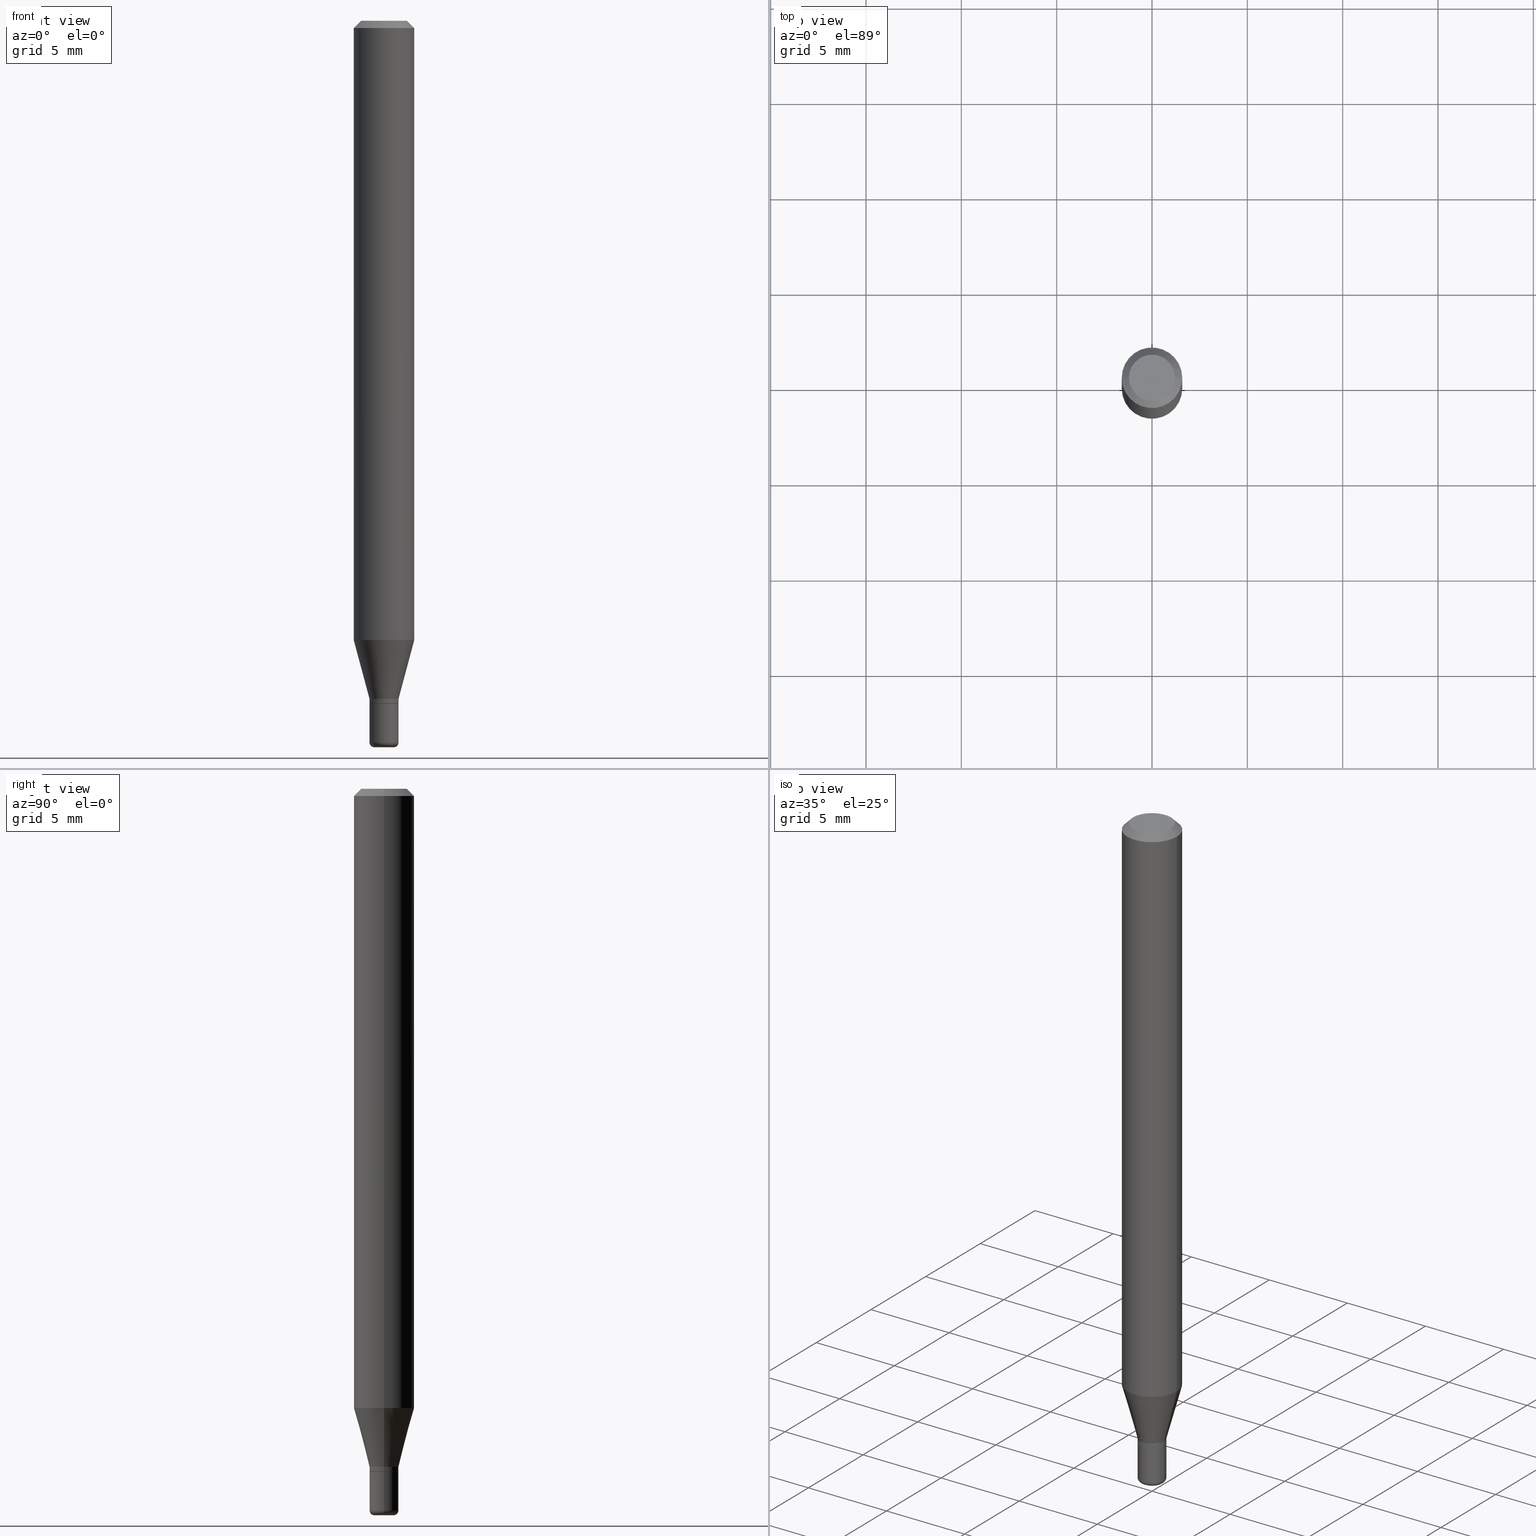
[diagram: canonical four-view strip — front | top / right | iso, engineering-drawing reading convention]
A machine part, canonical four-view strip (front | top / right | iso — engineering-drawing reading convention). The complete STEP part file that produces these views, byte-faithful:
ISO-10303-21;
HEADER;
FILE_DESCRIPTION (( 'STEP AP203' ),
    '1' );
FILE_NAME ('09160.STEP',
    '2024-02-29T22:48:57',
    ( '' ),
    ( '' ),
    'SwSTEP 2.0',
    'SolidWorks 2023',
    '' );
FILE_SCHEMA (( 'CONFIG_CONTROL_DESIGN' ));
ENDSEC;

DATA;
#1 = EDGE_LOOP ( 'NONE', ( #85, #330, #126, #214 ) ) ;
#2 = DIRECTION ( 'NONE',  ( 1.000000000000000000, -6.982962677686281699E-15, 0.000000000000000000 ) ) ;
#3 = DIRECTION ( 'NONE',  ( 1.000000000000000000, -6.982962677686282488E-15, 0.000000000000000000 ) ) ;
#4 = VERTEX_POINT ( 'NONE', #303 ) ;
#5 = VECTOR ( 'NONE', #306, 39.37007874015748143 ) ;
#6 = DIRECTION ( 'NONE',  ( -2.445468806185136877E-29, 3.491481338843145188E-15, 1.000000000000000000 ) ) ;
#7 = LOCAL_TIME ( 17, 48, 57.00000000000000000, #434 ) ;
#8 = FACE_OUTER_BOUND ( 'NONE', #161, .T. ) ;
#9 = ORIENTED_EDGE ( 'NONE', *, *, #195, .T. ) ;
#10 = ORIENTED_EDGE ( 'NONE', *, *, #149, .T. ) ;
#11 = EDGE_LOOP ( 'NONE', ( #32, #452, #176, #162 ) ) ;
#12 = CARTESIAN_POINT ( 'NONE',  ( 3.668203209277632395E-31, -5.237222008264614861E-17, -0.01499999999999970281 ) ) ;
#13 = ORIENTED_EDGE ( 'NONE', *, *, #179, .F. ) ;
#14 = CIRCLE ( 'NONE', #221, 0.04750000000000000749 ) ;
#15 = AXIS2_PLACEMENT_3D ( 'NONE', #436, #513, #155 ) ;
#16 = CARTESIAN_POINT ( 'NONE',  ( -0.02949999999999996722, -4.713378580719606355E-15, -1.409999999999999920 ) ) ;
#17 = VERTEX_POINT ( 'NONE', #340 ) ;
#18 = CARTESIAN_POINT ( 'NONE',  ( -0.02999999999999999542, -4.849485120594531264E-15, -1.409999999999999920 ) ) ;
#19 = EDGE_LOOP ( 'NONE', ( #238, #10, #237, #78 ) ) ;
#20 = CONICAL_SURFACE ( 'NONE', #319, 0.02949999999999996722, 0.7853981633975507526 ) ;
#21 = CIRCLE ( 'NONE', #329, 0.02000000000000000389 ) ;
#22 = CARTESIAN_POINT ( 'NONE',  ( 3.448111016721042669E-29, -4.922988687768835701E-15, -1.409999999999999920 ) ) ;
#23 = EDGE_CURVE ( 'NONE', #372, #53, #14, .T. ) ;
#24 = DIRECTION ( 'NONE',  ( -2.445468806185136877E-29, 3.491481338843145188E-15, 1.000000000000000000 ) ) ;
#25 = PRODUCT ( '09160', '09160', '', ( #84 ) ) ;
#26 = PERSON_AND_ORGANIZATION_ROLE ( 'creator' ) ;
#27 = CARTESIAN_POINT ( 'NONE',  ( 0.02999999999999999889, -5.132477568099423229E-15, -1.409999999999999920 ) ) ;
#28 = EDGE_CURVE ( 'NONE', #53, #372, #118, .T. ) ;
#29 = APPROVAL_ROLE ( '' ) ;
#30 = CIRCLE ( 'NONE', #105, 0.02999999999999997807 ) ;
#31 = CIRCLE ( 'NONE', #320, 0.02999999999999997113 ) ;
#32 = ORIENTED_EDGE ( 'NONE', *, *, #437, .T. ) ;
#33 = CIRCLE ( 'NONE', #278, 0.02999999999999997807 ) ;
#34 = ORIENTED_EDGE ( 'NONE', *, *, #407, .T. ) ;
#35 = EDGE_CURVE ( 'NONE', #476, #4, #448, .T. ) ;
#36 = CARTESIAN_POINT ( 'NONE',  ( -0.02949999999999996722, -4.710729353545495154E-15, -1.409999999999999920 ) ) ;
#37 = ORIENTED_EDGE ( 'NONE', *, *, #47, .F. ) ;
#38 = EDGE_LOOP ( 'NONE', ( #92, #333, #482, #444 ) ) ;
#39 = ADVANCED_FACE ( 'NONE', ( #337 ), #125, .F. ) ;
#40 = CARTESIAN_POINT ( 'NONE',  ( 0.000000000000000000, 0.000000000000000000, 0.000000000000000000 ) ) ;
#41 = DIRECTION ( 'NONE',  ( 1.000000000000000000, -6.982962677686258822E-15, 0.000000000000000000 ) ) ;
#42 = EDGE_LOOP ( 'NONE', ( #200, #366, #260, #416 ) ) ;
#43 = DIRECTION ( 'NONE',  ( -1.000000000000000000, 6.982962677686265922E-15, -4.876176775795935793E-29 ) ) ;
#44 = PERSON_AND_ORGANIZATION ( #103, #249 ) ;
#45 = ORIENTED_EDGE ( 'NONE', *, *, #98, .T. ) ;
#46 = LINE ( 'NONE', #51, #89 ) ;
#47 = EDGE_CURVE ( 'NONE', #406, #167, #252, .T. ) ;
#48 = AXIS2_PLACEMENT_3D ( 'NONE', #101, #462, #262 ) ;
#49 = CALENDAR_DATE ( 2024, 29, 2 ) ;
#50 = AXIS2_PLACEMENT_3D ( 'NONE', #203, #414, #441 ) ;
#51 = CARTESIAN_POINT ( 'NONE',  ( 0.02999999999999997460, -2.094888803305878238E-16, 1.462853032738779477E-30 ) ) ;
#52 = DIRECTION ( 'NONE',  ( 1.000000000000000000, -6.982962677686268288E-15, 0.000000000000000000 ) ) ;
#53 = VERTEX_POINT ( 'NONE', #379 ) ;
#54 = ORIENTED_EDGE ( 'NONE', *, *, #130, .T. ) ;
#55 = DATE_TIME_ROLE ( 'classification_date' ) ;
#56 = DIRECTION ( 'NONE',  ( 1.000000000000000000, -6.982962677686265922E-15, 4.876176775795935793E-29 ) ) ;
#57 = ADVANCED_FACE ( 'NONE', ( #59 ), #284, .T. ) ;
#58 = AXIS2_PLACEMENT_3D ( 'NONE', #65, #190, #100 ) ;
#59 = FACE_OUTER_BOUND ( 'NONE', #86, .T. ) ;
#60 = CARTESIAN_POINT ( 'NONE',  ( 0.02999999999999997113, -2.094888803305877992E-16, 1.462853032738779302E-30 ) ) ;
#61 = CARTESIAN_POINT ( 'NONE',  ( 0.000000000000000000, 0.000000000000000000, 0.000000000000000000 ) ) ;
#62 = VERTEX_POINT ( 'NONE', #344 ) ;
#63 = EDGE_CURVE ( 'NONE', #439, #283, #490, .T. ) ;
#64 = SHAPE_DEFINITION_REPRESENTATION ( #70, #276 ) ;
#65 = CARTESIAN_POINT ( 'NONE',  ( 3.448111016721042669E-29, -4.922988687768835701E-15, -1.409999999999999920 ) ) ;
#66 = AXIS2_PLACEMENT_3D ( 'NONE', #40, #514, #76 ) ;
#67 = AXIS2_PLACEMENT_3D ( 'NONE', #316, #504, #71 ) ;
#68 = FACE_OUTER_BOUND ( 'NONE', #288, .T. ) ;
#69 = PERSON_AND_ORGANIZATION ( #103, #249 ) ;
#70 = PRODUCT_DEFINITION_SHAPE ( 'NONE', 'NONE',  #79 ) ;
#71 = DIRECTION ( 'NONE',  ( 1.000000000000000000, -6.982962677686273021E-15, 0.000000000000000000 ) ) ;
#72 = DIRECTION ( 'NONE',  ( 1.000000000000000000, -6.982962677686273021E-15, 0.000000000000000000 ) ) ;
#73 = ADVANCED_FACE ( 'NONE', ( #346 ), #422, .T. ) ;
#74 = DIRECTION ( 'NONE',  ( -2.445468806185136597E-29, 3.491481338843145583E-15, 1.000000000000000000 ) ) ;
#75 = CALENDAR_DATE ( 2024, 29, 2 ) ;
#76 = DIRECTION ( 'NONE',  ( 1.000000000000000000, -6.982962677686266711E-15, 4.876176775795935793E-29 ) ) ;
#77 = VECTOR ( 'NONE', #24, 39.37007874015748143 ) ;
#78 = ORIENTED_EDGE ( 'NONE', *, *, #305, .F. ) ;
#79 = PRODUCT_DEFINITION ( 'UNKNOWN', '', #385, #324 ) ;
#80 = ORIENTED_EDGE ( 'NONE', *, *, #437, .F. ) ;
#81 = CIRCLE ( 'NONE', #363, 0.02999999999999997113 ) ;
#82 = EDGE_CURVE ( 'NONE', #17, #250, #30, .T. ) ;
#83 = ORIENTED_EDGE ( 'NONE', *, *, #233, .T. ) ;
#84 = MECHANICAL_CONTEXT ( 'NONE', #154, 'mechanical' ) ;
#85 = ORIENTED_EDGE ( 'NONE', *, *, #63, .F. ) ;
#86 = EDGE_LOOP ( 'NONE', ( #116, #54, #291, #475 ) ) ;
#87 = CLOSED_SHELL ( 'NONE', ( #294, #453, #317, #401, #73, #39 ) ) ;
#88 = APPLICATION_PROTOCOL_DEFINITION ( 'international standard', 'config_control_design', 1994, #154 ) ;
#89 = VECTOR ( 'NONE', #484, 39.37007874015748143 ) ;
#90 = CARTESIAN_POINT ( 'NONE',  ( -0.06250000000000000000, 4.440892098500626162E-16, -3.074334431409316114E-30 ) ) ;
#91 = CC_DESIGN_PERSON_AND_ORGANIZATION_ASSIGNMENT ( #189, #503, ( #396 ) ) ;
#92 = ORIENTED_EDGE ( 'NONE', *, *, #177, .T. ) ;
#93 = CARTESIAN_POINT ( 'NONE',  ( 3.446888282317950428E-29, -4.921242947099414198E-15, -1.409500000000000197 ) ) ;
#94 = CARTESIAN_POINT ( 'NONE',  ( -6.680649051745406845E-45, 9.538196290434862081E-31, 2.731847993664263218E-16 ) ) ;
#95 = VECTOR ( 'NONE', #343, 39.37007874015748854 ) ;
#96 = CIRCLE ( 'NONE', #438, 0.06250000000000000000 ) ;
#97 = ORIENTED_EDGE ( 'NONE', *, *, #130, .F. ) ;
#98 = EDGE_CURVE ( 'NONE', #250, #406, #133, .T. ) ;
#99 = DIRECTION ( 'NONE',  ( 0.7071067811865479058, -7.319954787623257623E-15, -0.7071067811865471286 ) ) ;
#100 = DIRECTION ( 'NONE',  ( 1.000000000000000000, -6.982962677686268288E-15, 0.000000000000000000 ) ) ;
#101 = CARTESIAN_POINT ( 'NONE',  ( -0.02000000000000000042, -5.060198647724267153E-15, -1.490000000000000213 ) ) ;
#102 = CALENDAR_DATE ( 2024, 29, 2 ) ;
#103 = PERSON ( 'UNSPECIFIED', 'UNSPECIFIED', 'UNSPECIFIED', ('UNSPECIFIED'), ('UNSPECIFIED'), ('UNSPECIFIED') ) ;
#104 = CARTESIAN_POINT ( 'NONE',  ( 3.423656328659191123E-29, -4.888073874380404052E-15, -1.400000000000000133 ) ) ;
#105 = AXIS2_PLACEMENT_3D ( 'NONE', #389, #124, #485 ) ;
#106 = CIRCLE ( 'NONE', #409, 0.02949999999999996722 ) ;
#107 = PERSON_AND_ORGANIZATION_ROLE ( 'design_supplier' ) ;
#108 = FACE_OUTER_BOUND ( 'NONE', #42, .T. ) ;
#109 = CARTESIAN_POINT ( 'NONE',  ( -0.02999999999999997460, 2.131628207280298753E-16, -1.475680527076470656E-30 ) ) ;
#110 = DATE_TIME_ROLE ( 'creation_date' ) ;
#111 = CARTESIAN_POINT ( 'NONE',  ( -0.02999999999999997113, 2.131628207280298507E-16, -1.475680527076470305E-30 ) ) ;
#112 = CIRCLE ( 'NONE', #430, 0.06250000000000000000 ) ;
#113 = CC_DESIGN_APPROVAL ( #114, ( #396 ) ) ;
#114 = APPROVAL ( #275, 'UNSPECIFIED' ) ;
#115 = ORIENTED_EDGE ( 'NONE', *, *, #274, .T. ) ;
#116 = ORIENTED_EDGE ( 'NONE', *, *, #28, .F. ) ;
#117 = APPROVAL_DATE_TIME ( #412, #314 ) ;
#118 = CIRCLE ( 'NONE', #212, 0.04750000000000000749 ) ;
#119 = PRODUCT_RELATED_PRODUCT_CATEGORY ( 'detail', '', ( #25 ) ) ;
#120 = CIRCLE ( 'NONE', #159, 0.02949999999999996722 ) ;
#121 = ORIENTED_EDGE ( 'NONE', *, *, #210, .T. ) ;
#122 = DIRECTION ( 'NONE',  ( 1.000000000000000000, 0.000000000000000000, 0.000000000000000000 ) ) ;
#123 = CARTESIAN_POINT ( 'NONE',  ( 3.448111016721042669E-29, -4.922988687768835701E-15, -1.409999999999999920 ) ) ;
#124 = DIRECTION ( 'NONE',  ( -2.445468806185136597E-29, 3.491481338843145583E-15, 1.000000000000000000 ) ) ;
#125 = PLANE ( 'NONE',  #383 ) ;
#126 = ORIENTED_EDGE ( 'NONE', *, *, #35, .T. ) ;
#127 = CARTESIAN_POINT ( 'NONE',  ( -0.02999999999999997807, -4.674911053652373807E-15, -1.400000000000000133 ) ) ;
#128 = DIRECTION ( 'NONE',  ( 0.7071067811866199593, -2.468850131083015945E-15, 0.7071067811864750752 ) ) ;
#129 = VECTOR ( 'NONE', #506, 39.37007874015748143 ) ;
#130 = EDGE_CURVE ( 'NONE', #53, #491, #296, .T. ) ;
#131 = ORIENTED_EDGE ( 'NONE', *, *, #282, .T. ) ;
#132 = LINE ( 'NONE', #450, #515 ) ;
#133 = LINE ( 'NONE', #127, #95 ) ;
#134 = ADVANCED_FACE ( 'NONE', ( #425 ), #20, .T. ) ;
#135 = DIRECTION ( 'NONE',  ( -1.000000000000000000, 6.982962677686266711E-15, 0.000000000000000000 ) ) ;
#136 = CARTESIAN_POINT ( 'NONE',  ( -6.680649051745406845E-45, 9.538196290434862081E-31, 2.731847993664263218E-16 ) ) ;
#137 = EDGE_CURVE ( 'NONE', #496, #349, #433, .T. ) ;
#138 = CARTESIAN_POINT ( 'NONE',  ( -0.04750000000000000749, 3.578768372314221353E-16, 2.731847993664239060E-16 ) ) ;
#139 = VECTOR ( 'NONE', #219, 39.37007874015748143 ) ;
#140 = EDGE_LOOP ( 'NONE', ( #254, #361 ) ) ;
#141 = DIRECTION ( 'NONE',  ( -2.445468806185136597E-29, 3.491481338843145583E-15, 1.000000000000000000 ) ) ;
#142 = DIRECTION ( 'NONE',  ( -2.445468806185136597E-29, 3.491481338843145583E-15, 1.000000000000000000 ) ) ;
#143 = DIRECTION ( 'NONE',  ( -2.445468806185136597E-29, 3.491481338843145583E-15, 1.000000000000000000 ) ) ;
#144 =( CONVERSION_BASED_UNIT ( 'INCH', #362 ) LENGTH_UNIT ( ) NAMED_UNIT ( #331 ) );
#145 = DIRECTION ( 'NONE',  ( -2.445468806185136597E-29, 3.491481338843145583E-15, 1.000000000000000000 ) ) ;
#146 = CARTESIAN_POINT ( 'NONE',  ( 3.127041379086440337E-29, -4.464586337497564496E-15, -1.278708348754011626 ) ) ;
#147 = VECTOR ( 'NONE', #6, 39.37007874015748143 ) ;
#148 = FACE_OUTER_BOUND ( 'NONE', #418, .T. ) ;
#149 = EDGE_CURVE ( 'NONE', #218, #347, #429, .T. ) ;
#150 = DIRECTION ( 'NONE',  ( -1.000000000000000000, 6.982962677686265922E-15, -4.876176775795935793E-29 ) ) ;
#151 = DIRECTION ( 'NONE',  ( 1.000000000000000000, -6.982962677686266711E-15, 4.876176775795935793E-29 ) ) ;
#152 = APPROVAL_STATUS ( 'not_yet_approved' ) ;
#153 = CARTESIAN_POINT ( 'NONE',  ( 3.643748521215853910E-29, -5.202307194876288105E-15, -1.490000000000000213 ) ) ;
#154 = APPLICATION_CONTEXT ( 'configuration controlled 3d designs of mechanical parts and assemblies' ) ;
#155 = DIRECTION ( 'NONE',  ( 1.000000000000000000, -6.982962677686265922E-15, 4.876176775795935793E-29 ) ) ;
#156 = ADVANCED_FACE ( 'NONE', ( #68 ), #280, .T. ) ;
#157 = FACE_OUTER_BOUND ( 'NONE', #327, .T. ) ;
#158 = VECTOR ( 'NONE', #99, 39.37007874015748143 ) ;
#159 = AXIS2_PLACEMENT_3D ( 'NONE', #399, #348, #312 ) ;
#160 = CARTESIAN_POINT ( 'NONE',  ( 3.448111016721042669E-29, -4.922988687768835701E-15, -1.409999999999999920 ) ) ;
#161 = EDGE_LOOP ( 'NONE', ( #440, #204, #13, #196 ) ) ;
#162 = ORIENTED_EDGE ( 'NONE', *, *, #35, .F. ) ;
#163 = AXIS2_PLACEMENT_3D ( 'NONE', #244, #371, #3 ) ;
#164 = ORIENTED_EDGE ( 'NONE', *, *, #229, .T. ) ;
#165 = CARTESIAN_POINT ( 'NONE',  ( -0.02999999999999994338, -4.849485120594531264E-15, -1.490000000000000213 ) ) ;
#166 = APPROVAL_ROLE ( '' ) ;
#167 = VERTEX_POINT ( 'NONE', #236 ) ;
#168 = ORIENTED_EDGE ( 'NONE', *, *, #411, .F. ) ;
#169 = FACE_OUTER_BOUND ( 'NONE', #456, .T. ) ;
#170 = DIRECTION ( 'NONE',  ( -2.438088387897960049E-29, 3.491481338843145188E-15, 1.000000000000000000 ) ) ;
#171 = APPROVAL_STATUS ( 'not_yet_approved' ) ;
#172 = ADVANCED_FACE ( 'NONE', ( #234 ), #198, .T. ) ;
#173 = CARTESIAN_POINT ( 'NONE',  ( 3.448111016721042669E-29, -4.922988687768835701E-15, -1.409999999999999920 ) ) ;
#174 = DIRECTION ( 'NONE',  ( 2.445468806185136597E-29, -3.491481338843145583E-15, -1.000000000000000000 ) ) ;
#175 = AXIS2_PLACEMENT_3D ( 'NONE', #427, #505, #495 ) ;
#176 = ORIENTED_EDGE ( 'NONE', *, *, #177, .F. ) ;
#177 = EDGE_CURVE ( 'NONE', #4, #283, #81, .T. ) ;
#178 = DIRECTION ( 'NONE',  ( -0.7071067811866199593, 7.493145998870616062E-15, 0.7071067811864750752 ) ) ;
#179 = EDGE_CURVE ( 'NONE', #491, #167, #465, .T. ) ;
#180 = ORIENTED_EDGE ( 'NONE', *, *, #274, .F. ) ;
#181 = EDGE_LOOP ( 'NONE', ( #97, #342, #83, #115 ) ) ;
#182 =( GEOMETRIC_REPRESENTATION_CONTEXT ( 3 ) GLOBAL_UNCERTAINTY_ASSIGNED_CONTEXT ( ( #451 ) ) GLOBAL_UNIT_ASSIGNED_CONTEXT ( ( #144, #353, #397 ) ) REPRESENTATION_CONTEXT ( 'NONE', 'WORKASPACE' ) );
#183 = CARTESIAN_POINT ( 'NONE',  ( 3.643748521215853910E-29, -5.202307194876288105E-15, -1.490000000000000213 ) ) ;
#184 = DIRECTION ( 'NONE',  ( 2.445468806185136597E-29, -3.491481338843145583E-15, -1.000000000000000000 ) ) ;
#185 = DIRECTION ( 'NONE',  ( 1.000000000000000000, -6.982962677686262766E-15, 0.000000000000000000 ) ) ;
#186 = FACE_OUTER_BOUND ( 'NONE', #332, .T. ) ;
#187 = CC_DESIGN_PERSON_AND_ORGANIZATION_ASSIGNMENT ( #367, #334, ( #79 ) ) ;
#188 = DIRECTION ( 'NONE',  ( 1.000000000000000000, -6.982962677686266711E-15, 0.000000000000000000 ) ) ;
#189 = PERSON_AND_ORGANIZATION ( #103, #249 ) ;
#190 = DIRECTION ( 'NONE',  ( -2.445468806185136597E-29, 3.491481338843145583E-15, 1.000000000000000000 ) ) ;
#191 = TOROIDAL_SURFACE ( 'NONE', #213, 0.02000000000000000042, 0.009999999999999946432 ) ;
#192 = CYLINDRICAL_SURFACE ( 'NONE', #309, 0.02999999999999997460 ) ;
#193 = DATE_AND_TIME ( #75, #194 ) ;
#194 = LOCAL_TIME ( 17, 48, 57.00000000000000000, #511 ) ;
#195 = EDGE_CURVE ( 'NONE', #4, #17, #46, .T. ) ;
#196 = ORIENTED_EDGE ( 'NONE', *, *, #407, .F. ) ;
#197 = CARTESIAN_POINT ( 'NONE',  ( 3.423656328659191123E-29, -4.888073874380404052E-15, -1.400000000000000133 ) ) ;
#198 = CONICAL_SURFACE ( 'NONE', #408, 0.02999999999999997807, 0.2617993877991498519 ) ;
#199 = AXIS2_PLACEMENT_3D ( 'NONE', #246, #338, #413 ) ;
#200 = ORIENTED_EDGE ( 'NONE', *, *, #98, .F. ) ;
#201 = CC_DESIGN_DATE_AND_TIME_ASSIGNMENT ( #428, #110, ( #79 ) ) ;
#202 = CARTESIAN_POINT ( 'NONE',  ( 3.643748521215853910E-29, -5.202307194876288105E-15, -1.490000000000000213 ) ) ;
#203 = CARTESIAN_POINT ( 'NONE',  ( 0.000000000000000000, 0.000000000000000000, 0.000000000000000000 ) ) ;
#204 = ORIENTED_EDGE ( 'NONE', *, *, #47, .T. ) ;
#205 = CARTESIAN_POINT ( 'NONE',  ( 0.000000000000000000, 0.000000000000000000, 0.000000000000000000 ) ) ;
#206 = CC_DESIGN_PERSON_AND_ORGANIZATION_ASSIGNMENT ( #304, #107, ( #385 ) ) ;
#207 = CARTESIAN_POINT ( 'NONE',  ( 3.582686580359766038E-29, -5.359686688179453325E-15, -1.500000000000000222 ) ) ;
#208 = DIRECTION ( 'NONE',  ( -2.445468806185136597E-29, 3.491481338843145583E-15, 1.000000000000000000 ) ) ;
#209 = PERSON_AND_ORGANIZATION ( #103, #249 ) ;
#210 = EDGE_CURVE ( 'NONE', #283, #4, #31, .T. ) ;
#211 = ORIENTED_EDGE ( 'NONE', *, *, #229, .F. ) ;
#212 = AXIS2_PLACEMENT_3D ( 'NONE', #94, #208, #449 ) ;
#213 = AXIS2_PLACEMENT_3D ( 'NONE', #183, #142, #460 ) ;
#214 = ORIENTED_EDGE ( 'NONE', *, *, #210, .F. ) ;
#215 = CC_DESIGN_SECURITY_CLASSIFICATION ( #396, ( #385 ) ) ;
#216 = ADVANCED_FACE ( 'NONE', ( #417 ), #510, .T. ) ;
#217 = CARTESIAN_POINT ( 'NONE',  ( -0.02999999999999997113, -4.708080126371384742E-15, -1.409500000000000197 ) ) ;
#218 = VERTEX_POINT ( 'NONE', #493 ) ;
#219 = DIRECTION ( 'NONE',  ( -2.445468806185136877E-29, 3.491481338843145188E-15, 1.000000000000000000 ) ) ;
#220 = CARTESIAN_POINT ( 'NONE',  ( 3.668203209277632395E-31, -5.237222008264614861E-17, -0.01499999999999970281 ) ) ;
#221 = AXIS2_PLACEMENT_3D ( 'NONE', #136, #258, #419 ) ;
#222 = VECTOR ( 'NONE', #502, 39.37007874015748143 ) ;
#223 = APPROVAL_PERSON_ORGANIZATION ( #289, #314, #166 ) ;
#224 = CARTESIAN_POINT ( 'NONE',  ( 3.668203209277704895E-29, -5.237222008264718177E-15, -1.500000000000000222 ) ) ;
#225 = CARTESIAN_POINT ( 'NONE',  ( 0.02000000000000000389, -5.376881261818443984E-15, -1.500000000000000222 ) ) ;
#226 = EDGE_CURVE ( 'NONE', #17, #62, #132, .T. ) ;
#227 = DIRECTION ( 'NONE',  ( 1.000000000000000000, -6.982962677686281699E-15, 0.000000000000000000 ) ) ;
#228 = DIRECTION ( 'NONE',  ( -2.445468806185136597E-29, 3.491481338843145583E-15, 1.000000000000000000 ) ) ;
#229 = EDGE_CURVE ( 'NONE', #347, #496, #357, .T. ) ;
#230 = APPROVAL_DATE_TIME ( #193, #114 ) ;
#231 = CLOSED_SHELL ( 'NONE', ( #381, #216, #57, #424, #172, #370, #156, #420, #351, #489, #134, #494 ) ) ;
#232 = AXIS2_PLACEMENT_3D ( 'NONE', #390, #355, #150 ) ;
#233 = EDGE_CURVE ( 'NONE', #372, #167, #497, .T. ) ;
#234 = FACE_OUTER_BOUND ( 'NONE', #386, .T. ) ;
#235 = DIRECTION ( 'NONE',  ( 1.000000000000000000, -6.982962677686262766E-15, 0.000000000000000000 ) ) ;
#236 = CARTESIAN_POINT ( 'NONE',  ( -0.06250000000000000000, -1.814390068940042580E-15, -0.01499999999999970281 ) ) ;
#237 = ORIENTED_EDGE ( 'NONE', *, *, #388, .F. ) ;
#238 = ORIENTED_EDGE ( 'NONE', *, *, #463, .T. ) ;
#239 = AXIS2_PLACEMENT_3D ( 'NONE', #146, #458, #185 ) ;
#240 = CYLINDRICAL_SURFACE ( 'NONE', #364, 0.06250000000000000000 ) ;
#241 = CC_DESIGN_APPROVAL ( #314, ( #79 ) ) ;
#242 = ORIENTED_EDGE ( 'NONE', *, *, #255, .F. ) ;
#243 = EDGE_CURVE ( 'NONE', #218, #517, #21, .T. ) ;
#244 = CARTESIAN_POINT ( 'NONE',  ( 3.668203209277704895E-29, -5.237222008264718177E-15, -1.500000000000000222 ) ) ;
#245 = ORIENTED_EDGE ( 'NONE', *, *, #305, .T. ) ;
#246 = CARTESIAN_POINT ( 'NONE',  ( 3.668203209277632395E-31, -5.237222008264614861E-17, -0.01499999999999970281 ) ) ;
#247 = EDGE_LOOP ( 'NONE', ( #481, #445, #245, #211 ) ) ;
#248 = APPLICATION_PROTOCOL_DEFINITION ( 'international standard', 'config_control_design', 1994, #365 ) ;
#249 = ORGANIZATION ( 'UNSPECIFIED', 'UNSPECIFIED', '' ) ;
#250 = VERTEX_POINT ( 'NONE', #307 ) ;
#251 = DIRECTION ( 'NONE',  ( -2.445468806185136597E-29, 3.491481338843145583E-15, 1.000000000000000000 ) ) ;
#252 = LINE ( 'NONE', #90, #5 ) ;
#253 = COORDINATED_UNIVERSAL_TIME_OFFSET ( 5, 0, .BEHIND. ) ;
#254 = ORIENTED_EDGE ( 'NONE', *, *, #463, .F. ) ;
#255 = EDGE_CURVE ( 'NONE', #439, #476, #120, .T. ) ;
#256 = ORIENTED_EDGE ( 'NONE', *, *, #472, .F. ) ;
#257 = DIRECTION ( 'NONE',  ( 0.000000000000000000, 0.000000000000000000, 1.000000000000000000 ) ) ;
#258 = DIRECTION ( 'NONE',  ( -2.445468806185136597E-29, 3.491481338843145583E-15, 1.000000000000000000 ) ) ;
#259 = CIRCLE ( 'NONE', #163, 0.02000000000000000389 ) ;
#260 = ORIENTED_EDGE ( 'NONE', *, *, #226, .T. ) ;
#261 = CARTESIAN_POINT ( 'NONE',  ( 3.668203209277632395E-31, -5.237222008264614861E-17, -0.01499999999999970281 ) ) ;
#262 = DIRECTION ( 'NONE',  ( -1.000000000000000000, 7.105427357600964782E-15, 0.000000000000000000 ) ) ;
#263 = FACE_OUTER_BOUND ( 'NONE', #181, .T. ) ;
#264 = FACE_OUTER_BOUND ( 'NONE', #19, .T. ) ;
#265 = CARTESIAN_POINT ( 'NONE',  ( 0.02999999999999994338, -5.411796075206875633E-15, -1.490000000000000213 ) ) ;
#266 = CYLINDRICAL_SURFACE ( 'NONE', #300, 0.02999999999999997113 ) ;
#267 = AXIS2_PLACEMENT_3D ( 'NONE', #61, #468, #457 ) ;
#268 = CARTESIAN_POINT ( 'NONE',  ( 0.06250000000000000000, -4.811533449433669144E-16, -0.01499999999999970281 ) ) ;
#269 = COORDINATED_UNIVERSAL_TIME_OFFSET ( 5, 0, .BEHIND. ) ;
#270 = CYLINDRICAL_SURFACE ( 'NONE', #267, 0.02999999999999997460 ) ;
#271 = DIRECTION ( 'NONE',  ( 1.000000000000000000, -6.982962677686282488E-15, 0.000000000000000000 ) ) ;
#272 = CARTESIAN_POINT ( 'NONE',  ( 3.127041379086440337E-29, -4.464586337497564496E-15, -1.278708348754011626 ) ) ;
#273 = APPROVAL_ROLE ( '' ) ;
#274 = EDGE_CURVE ( 'NONE', #167, #491, #96, .T. ) ;
#275 = APPROVAL_STATUS ( 'not_yet_approved' ) ;
#276 = ADVANCED_BREP_SHAPE_REPRESENTATION ( '09160', ( #500, #492, #410 ), #182 ) ;
#277 = VECTOR ( 'NONE', #178, 39.37007874015748143 ) ;
#278 = AXIS2_PLACEMENT_3D ( 'NONE', #104, #145, #72 ) ;
#279 = ORIENTED_EDGE ( 'NONE', *, *, #388, .T. ) ;
#280 = CYLINDRICAL_SURFACE ( 'NONE', #66, 0.06250000000000000000 ) ;
#281 = DIRECTION ( 'NONE',  ( -2.445468806185136597E-29, 3.491481338843145583E-15, 1.000000000000000000 ) ) ;
#282 = EDGE_CURVE ( 'NONE', #406, #62, #446, .T. ) ;
#283 = VERTEX_POINT ( 'NONE', #217 ) ;
#284 = CONICAL_SURFACE ( 'NONE', #498, 0.06250000000000000000, 0.7853981633974488341 ) ;
#285 = AXIS2_PLACEMENT_3D ( 'NONE', #501, #141, #227 ) ;
#286 = DIRECTION ( 'NONE',  ( -2.445468806185136597E-29, 3.491481338843145583E-15, 1.000000000000000000 ) ) ;
#287 = APPROVAL_PERSON_ORGANIZATION ( #209, #114, #29 ) ;
#288 = EDGE_LOOP ( 'NONE', ( #37, #131, #34, #180 ) ) ;
#289 = PERSON_AND_ORGANIZATION ( #103, #249 ) ;
#290 = DIRECTION ( 'NONE',  ( 1.000000000000000000, -6.982962677686274599E-15, 0.000000000000000000 ) ) ;
#291 = ORIENTED_EDGE ( 'NONE', *, *, #179, .T. ) ;
#292 = PLANE ( 'NONE',  #474 ) ;
#293 = VERTEX_POINT ( 'NONE', #18 ) ;
#294 = ADVANCED_FACE ( 'NONE', ( #264 ), #191, .T. ) ;
#295 = DIRECTION ( 'NONE',  ( -2.445468806185136597E-29, 3.491481338843145583E-15, 1.000000000000000000 ) ) ;
#296 = LINE ( 'NONE', #268, #158 ) ;
#297 = ORIENTED_EDGE ( 'NONE', *, *, #137, .T. ) ;
#298 = ORIENTED_EDGE ( 'NONE', *, *, #322, .T. ) ;
#299 = DIRECTION ( 'NONE',  ( 1.000000000000000000, -6.982962677686274599E-15, 0.000000000000000000 ) ) ;
#300 = AXIS2_PLACEMENT_3D ( 'NONE', #461, #354, #507 ) ;
#301 = CALENDAR_DATE ( 2024, 29, 2 ) ;
#302 = CARTESIAN_POINT ( 'NONE',  ( 0.02949999999999996722, -5.128986086760580222E-15, -1.409999999999999920 ) ) ;
#303 = CARTESIAN_POINT ( 'NONE',  ( 0.02999999999999997113, -5.130731827430002515E-15, -1.409500000000000197 ) ) ;
#304 = PERSON_AND_ORGANIZATION ( #103, #249 ) ;
#305 = EDGE_CURVE ( 'NONE', #517, #496, #499, .T. ) ;
#306 = DIRECTION ( 'NONE',  ( -2.445468806185136877E-29, 3.491481338843145188E-15, 1.000000000000000000 ) ) ;
#307 = CARTESIAN_POINT ( 'NONE',  ( -0.02999999999999997807, -4.347704090649937844E-15, -1.400000000000000133 ) ) ;
#308 = CARTESIAN_POINT ( 'NONE',  ( 0.02949999999999996722, -5.128986086760580222E-15, -1.409999999999999920 ) ) ;
#309 = AXIS2_PLACEMENT_3D ( 'NONE', #358, #74, #151 ) ;
#310 = FACE_OUTER_BOUND ( 'NONE', #38, .T. ) ;
#311 = LOCAL_TIME ( 17, 48, 57.00000000000000000, #341 ) ;
#312 = DIRECTION ( 'NONE',  ( 1.000000000000000000, -6.982962677686258822E-15, 0.000000000000000000 ) ) ;
#313 = DIRECTION ( 'NONE',  ( -2.445468806185136597E-29, 3.491481338843145583E-15, 1.000000000000000000 ) ) ;
#314 = APPROVAL ( #171, 'UNSPECIFIED' ) ;
#315 = DIRECTION ( 'NONE',  ( 1.000000000000000000, -6.982962677686258822E-15, 0.000000000000000000 ) ) ;
#316 = CARTESIAN_POINT ( 'NONE',  ( 3.423656328659191123E-29, -4.888073874380404052E-15, -1.400000000000000133 ) ) ;
#317 = ADVANCED_FACE ( 'NONE', ( #157 ), #292, .F. ) ;
#318 = CARTESIAN_POINT ( 'NONE',  ( -0.06250000000000000000, -4.020497127647501880E-15, -1.278708348754011626 ) ) ;
#319 = AXIS2_PLACEMENT_3D ( 'NONE', #22, #143, #315 ) ;
#320 = AXIS2_PLACEMENT_3D ( 'NONE', #93, #251, #299 ) ;
#321 = DATE_AND_TIME ( #102, #488 ) ;
#322 = EDGE_CURVE ( 'NONE', #347, #293, #373, .T. ) ;
#323 = PLANE ( 'NONE',  #232 ) ;
#324 = DESIGN_CONTEXT ( 'detailed design', #365, 'design' ) ;
#325 = FACE_OUTER_BOUND ( 'NONE', #368, .T. ) ;
#326 = CARTESIAN_POINT ( 'NONE',  ( 3.446888282317950428E-29, -4.921242947099414198E-15, -1.409500000000000197 ) ) ;
#327 = EDGE_LOOP ( 'NONE', ( #442, #380 ) ) ;
#328 = AXIS2_PLACEMENT_3D ( 'NONE', #153, #313, #426 ) ;
#329 = AXIS2_PLACEMENT_3D ( 'NONE', #224, #228, #271 ) ;
#330 = ORIENTED_EDGE ( 'NONE', *, *, #255, .T. ) ;
#331 = DIMENSIONAL_EXPONENTS ( 1.000000000000000000, 0.000000000000000000, 0.000000000000000000, 0.000000000000000000, 0.000000000000000000, 0.000000000000000000, 0.000000000000000000 ) ;
#332 = EDGE_LOOP ( 'NONE', ( #480, #516 ) ) ;
#333 = ORIENTED_EDGE ( 'NONE', *, *, #512, .T. ) ;
#334 = PERSON_AND_ORGANIZATION_ROLE ( 'creator' ) ;
#335 = AXIS2_PLACEMENT_3D ( 'NONE', #173, #487, #345 ) ;
#336 = APPROVAL ( #152, 'UNSPECIFIED' ) ;
#337 = FACE_OUTER_BOUND ( 'NONE', #140, .T. ) ;
#338 = DIRECTION ( 'NONE',  ( -2.445468806185136597E-29, 3.491481338843145583E-15, 1.000000000000000000 ) ) ;
#339 = DIRECTION ( 'NONE',  ( -2.445468806185136597E-29, 3.491481338843145583E-15, 1.000000000000000000 ) ) ;
#340 = CARTESIAN_POINT ( 'NONE',  ( 0.02999999999999997807, -5.097562754710991580E-15, -1.400000000000000133 ) ) ;
#341 = COORDINATED_UNIVERSAL_TIME_OFFSET ( 5, 0, .BEHIND. ) ;
#342 = ORIENTED_EDGE ( 'NONE', *, *, #23, .F. ) ;
#343 = DIRECTION ( 'NONE',  ( -0.2588190451025211281, 5.211531920934547886E-15, 0.9659258262890679791 ) ) ;
#344 = CARTESIAN_POINT ( 'NONE',  ( 0.06250000000000000000, -4.901021504852956166E-15, -1.278708348754011626 ) ) ;
#345 = DIRECTION ( 'NONE',  ( 1.000000000000000000, -6.982962677686258822E-15, 0.000000000000000000 ) ) ;
#346 = FACE_OUTER_BOUND ( 'NONE', #247, .T. ) ;
#347 = VERTEX_POINT ( 'NONE', #165 ) ;
#348 = DIRECTION ( 'NONE',  ( -2.445468806185136597E-29, 3.491481338843145583E-15, 1.000000000000000000 ) ) ;
#349 = VERTEX_POINT ( 'NONE', #27 ) ;
#350 = CIRCLE ( 'NONE', #455, 0.02999999999999999889 ) ;
#351 = ADVANCED_FACE ( 'NONE', ( #186 ), #323, .F. ) ;
#352 = DIRECTION ( 'NONE',  ( -1.000000000000000000, 6.982962677686266711E-15, 0.000000000000000000 ) ) ;
#353 =( NAMED_UNIT ( * ) PLANE_ANGLE_UNIT ( ) SI_UNIT ( $, .RADIAN. ) );
#354 = DIRECTION ( 'NONE',  ( -2.445468806185136597E-29, 3.491481338843145583E-15, 1.000000000000000000 ) ) ;
#355 = DIRECTION ( 'NONE',  ( 2.438088387897960049E-29, -3.491481338843145188E-15, -1.000000000000000000 ) ) ;
#356 = CARTESIAN_POINT ( 'NONE',  ( 0.000000000000000000, 0.000000000000000000, 0.000000000000000000 ) ) ;
#357 = CIRCLE ( 'NONE', #395, 0.02999999999999994338 ) ;
#358 = CARTESIAN_POINT ( 'NONE',  ( 0.000000000000000000, 0.000000000000000000, 0.000000000000000000 ) ) ;
#359 = APPROVAL_DATE_TIME ( #321, #336 ) ;
#360 = DIRECTION ( 'NONE',  ( 2.438088387897960049E-29, -3.491481338843145188E-15, -1.000000000000000000 ) ) ;
#361 = ORIENTED_EDGE ( 'NONE', *, *, #243, .F. ) ;
#362 = LENGTH_MEASURE_WITH_UNIT ( LENGTH_MEASURE( 0.02539999999999999897 ), #471 );
#363 = AXIS2_PLACEMENT_3D ( 'NONE', #326, #382, #290 ) ;
#364 = AXIS2_PLACEMENT_3D ( 'NONE', #205, #339, #377 ) ;
#365 = APPLICATION_CONTEXT ( 'configuration controlled 3d designs of mechanical parts and assemblies' ) ;
#366 = ORIENTED_EDGE ( 'NONE', *, *, #404, .T. ) ;
#367 = PERSON_AND_ORGANIZATION ( #103, #249 ) ;
#368 = EDGE_LOOP ( 'NONE', ( #443, #121, #9, #378 ) ) ;
#369 = DIRECTION ( 'NONE',  ( -2.445468806185136597E-29, 3.491481338843145583E-15, 1.000000000000000000 ) ) ;
#370 = ADVANCED_FACE ( 'NONE', ( #108 ), #486, .T. ) ;
#371 = DIRECTION ( 'NONE',  ( -2.445468806185136597E-29, 3.491481338843145583E-15, 1.000000000000000000 ) ) ;
#372 = VERTEX_POINT ( 'NONE', #138 ) ;
#373 = LINE ( 'NONE', #111, #147 ) ;
#374 = PERSON_AND_ORGANIZATION_ROLE ( 'design_owner' ) ;
#375 = CIRCLE ( 'NONE', #285, 0.02999999999999994338 ) ;
#376 = ORIENTED_EDGE ( 'NONE', *, *, #477, .F. ) ;
#377 = DIRECTION ( 'NONE',  ( 1.000000000000000000, -6.982962677686266711E-15, 4.876176775795935793E-29 ) ) ;
#378 = ORIENTED_EDGE ( 'NONE', *, *, #404, .F. ) ;
#379 = CARTESIAN_POINT ( 'NONE',  ( 0.04750000000000000749, -4.035134999187568762E-16, 2.731847993664288856E-16 ) ) ;
#380 = ORIENTED_EDGE ( 'NONE', *, *, #411, .T. ) ;
#381 = ADVANCED_FACE ( 'NONE', ( #310 ), #270, .T. ) ;
#382 = DIRECTION ( 'NONE',  ( -2.445468806185136597E-29, 3.491481338843145583E-15, 1.000000000000000000 ) ) ;
#383 = AXIS2_PLACEMENT_3D ( 'NONE', #207, #170, #56 ) ;
#384 = CIRCLE ( 'NONE', #58, 0.02999999999999999889 ) ;
#385 = PRODUCT_DEFINITION_FORMATION_WITH_SPECIFIED_SOURCE ( 'ANY', '', #25, .NOT_KNOWN. ) ;
#386 = EDGE_LOOP ( 'NONE', ( #415, #45, #376, #391 ) ) ;
#387 = DIRECTION ( 'NONE',  ( -2.445468806185136597E-29, 3.491481338843145583E-15, 1.000000000000000000 ) ) ;
#388 = EDGE_CURVE ( 'NONE', #496, #347, #375, .T. ) ;
#389 = CARTESIAN_POINT ( 'NONE',  ( 3.423656328659191123E-29, -4.888073874380404052E-15, -1.400000000000000133 ) ) ;
#390 = CARTESIAN_POINT ( 'NONE',  ( 3.316907271900976589E-16, 0.04750000000000000749, -2.925296391183627249E-17 ) ) ;
#391 = ORIENTED_EDGE ( 'NONE', *, *, #226, .F. ) ;
#392 = CC_DESIGN_PERSON_AND_ORGANIZATION_ASSIGNMENT ( #394, #26, ( #385 ) ) ;
#393 = CARTESIAN_POINT ( 'NONE',  ( -0.06250000000000000000, 3.840629472727455270E-16, -0.01499999999999970281 ) ) ;
#394 = PERSON_AND_ORGANIZATION ( #103, #249 ) ;
#395 = AXIS2_PLACEMENT_3D ( 'NONE', #202, #369, #2 ) ;
#396 = SECURITY_CLASSIFICATION ( '', '', #464 ) ;
#397 =( NAMED_UNIT ( * ) SI_UNIT ( $, .STERADIAN. ) SOLID_ANGLE_UNIT ( ) );
#398 = FACE_OUTER_BOUND ( 'NONE', #405, .T. ) ;
#399 = CARTESIAN_POINT ( 'NONE',  ( 3.448111016721042669E-29, -4.922988687768835701E-15, -1.409999999999999920 ) ) ;
#400 = LINE ( 'NONE', #459, #77 ) ;
#401 = ADVANCED_FACE ( 'NONE', ( #398 ), #266, .T. ) ;
#402 = PLANE ( 'NONE',  #15 ) ;
#403 = DIRECTION ( 'NONE',  ( 1.000000000000000000, -6.982962677686273021E-15, 0.000000000000000000 ) ) ;
#404 = EDGE_CURVE ( 'NONE', #250, #17, #33, .T. ) ;
#405 = EDGE_LOOP ( 'NONE', ( #478, #164, #297, #168 ) ) ;
#406 = VERTEX_POINT ( 'NONE', #318 ) ;
#407 = EDGE_CURVE ( 'NONE', #62, #491, #400, .T. ) ;
#408 = AXIS2_PLACEMENT_3D ( 'NONE', #197, #281, #403 ) ;
#409 = AXIS2_PLACEMENT_3D ( 'NONE', #160, #286, #41 ) ;
#410 = AXIS2_PLACEMENT_3D ( 'NONE', #356, #257, #122 ) ;
#411 = EDGE_CURVE ( 'NONE', #293, #349, #384, .T. ) ;
#412 = DATE_AND_TIME ( #301, #311 ) ;
#413 = DIRECTION ( 'NONE',  ( 1.000000000000000000, -6.982962677686266711E-15, 0.000000000000000000 ) ) ;
#414 = DIRECTION ( 'NONE',  ( -2.445468806185136597E-29, 3.491481338843145583E-15, 1.000000000000000000 ) ) ;
#415 = ORIENTED_EDGE ( 'NONE', *, *, #82, .T. ) ;
#416 = ORIENTED_EDGE ( 'NONE', *, *, #282, .F. ) ;
#417 = FACE_OUTER_BOUND ( 'NONE', #11, .T. ) ;
#418 = EDGE_LOOP ( 'NONE', ( #80, #242 ) ) ;
#419 = DIRECTION ( 'NONE',  ( 1.000000000000000000, -6.982962677686266711E-15, 4.852736867747365086E-29 ) ) ;
#420 = ADVANCED_FACE ( 'NONE', ( #263 ), #454, .T. ) ;
#421 = DIRECTION ( 'NONE',  ( 0.2588190451025211281, 1.565188264969622954E-15, 0.9659258262890679791 ) ) ;
#422 = TOROIDAL_SURFACE ( 'NONE', #328, 0.02000000000000000042, 0.009999999999999946432 ) ;
#423 = ORIENTED_EDGE ( 'NONE', *, *, #137, .F. ) ;
#424 = ADVANCED_FACE ( 'NONE', ( #8 ), #240, .T. ) ;
#425 = FACE_OUTER_BOUND ( 'NONE', #1, .T. ) ;
#426 = DIRECTION ( 'NONE',  ( 1.000000000000000000, -6.982962677686280910E-15, 4.883557194083117946E-29 ) ) ;
#427 = CARTESIAN_POINT ( 'NONE',  ( 0.02000000000000000042, -5.341966448430013913E-15, -1.490000000000000213 ) ) ;
#428 = DATE_AND_TIME ( #49, #467 ) ;
#429 = CIRCLE ( 'NONE', #48, 0.009999999999999944697 ) ;
#430 = AXIS2_PLACEMENT_3D ( 'NONE', #272, #508, #235 ) ;
#431 = APPROVAL_PERSON_ORGANIZATION ( #69, #336, #273 ) ;
#432 = DATE_AND_TIME ( #470, #7 ) ;
#433 = LINE ( 'NONE', #60, #139 ) ;
#434 = COORDINATED_UNIVERSAL_TIME_OFFSET ( 5, 0, .BEHIND. ) ;
#435 = CARTESIAN_POINT ( 'NONE',  ( 2.094888803306224597E-16, 0.02999999999999507921, -1.409999999999999920 ) ) ;
#436 = CARTESIAN_POINT ( 'NONE',  ( 3.448111016721042669E-29, -4.922988687768835701E-15, -1.409999999999999920 ) ) ;
#437 = EDGE_CURVE ( 'NONE', #476, #439, #106, .T. ) ;
#438 = AXIS2_PLACEMENT_3D ( 'NONE', #261, #387, #188 ) ;
#439 = VERTEX_POINT ( 'NONE', #36 ) ;
#440 = ORIENTED_EDGE ( 'NONE', *, *, #477, .T. ) ;
#441 = DIRECTION ( 'NONE',  ( 1.000000000000000000, -6.982962677686266711E-15, 4.876176775795935793E-29 ) ) ;
#442 = ORIENTED_EDGE ( 'NONE', *, *, #472, .T. ) ;
#443 = ORIENTED_EDGE ( 'NONE', *, *, #512, .F. ) ;
#444 = ORIENTED_EDGE ( 'NONE', *, *, #195, .F. ) ;
#445 = ORIENTED_EDGE ( 'NONE', *, *, #243, .T. ) ;
#446 = CIRCLE ( 'NONE', #239, 0.06250000000000000000 ) ;
#447 = CC_DESIGN_DATE_AND_TIME_ASSIGNMENT ( #432, #55, ( #396 ) ) ;
#448 = LINE ( 'NONE', #308, #509 ) ;
#449 = DIRECTION ( 'NONE',  ( 1.000000000000000000, -6.982962677686266711E-15, 4.852736867747365086E-29 ) ) ;
#450 = CARTESIAN_POINT ( 'NONE',  ( 0.02999999999999997807, -5.097562754710991580E-15, -1.400000000000000133 ) ) ;
#451 = UNCERTAINTY_MEASURE_WITH_UNIT (LENGTH_MEASURE( 1.000000000000000082E-05 ), #144, 'distance_accuracy_value', 'NONE');
#452 = ORIENTED_EDGE ( 'NONE', *, *, #63, .T. ) ;
#453 = ADVANCED_FACE ( 'NONE', ( #169 ), #518, .T. ) ;
#454 = CONICAL_SURFACE ( 'NONE', #466, 0.06250000000000000000, 0.7853981633974488341 ) ;
#455 = AXIS2_PLACEMENT_3D ( 'NONE', #123, #295, #52 ) ;
#456 = EDGE_LOOP ( 'NONE', ( #279, #298, #256, #423 ) ) ;
#457 = DIRECTION ( 'NONE',  ( 1.000000000000000000, -6.982962677686266711E-15, 4.876176775795935793E-29 ) ) ;
#458 = DIRECTION ( 'NONE',  ( -2.445468806185136597E-29, 3.491481338843145583E-15, 1.000000000000000000 ) ) ;
#459 = CARTESIAN_POINT ( 'NONE',  ( 0.06250000000000000000, -4.364351673553916694E-16, 3.047610484872459871E-30 ) ) ;
#460 = DIRECTION ( 'NONE',  ( 1.000000000000000000, -6.982962677686280910E-15, 4.883557194083117946E-29 ) ) ;
#461 = CARTESIAN_POINT ( 'NONE',  ( 0.000000000000000000, 0.000000000000000000, 0.000000000000000000 ) ) ;
#462 = DIRECTION ( 'NONE',  ( 7.105427357601001859E-15, 1.000000000000000000, -3.491481338843145583E-15 ) ) ;
#463 = EDGE_CURVE ( 'NONE', #517, #218, #259, .T. ) ;
#464 = SECURITY_CLASSIFICATION_LEVEL ( 'unclassified' ) ;
#465 = CIRCLE ( 'NONE', #199, 0.06250000000000000000 ) ;
#466 = AXIS2_PLACEMENT_3D ( 'NONE', #220, #184, #352 ) ;
#467 = LOCAL_TIME ( 17, 48, 57.00000000000000000, #253 ) ;
#468 = DIRECTION ( 'NONE',  ( -2.445468806185136597E-29, 3.491481338843145583E-15, 1.000000000000000000 ) ) ;
#469 = LINE ( 'NONE', #109, #129 ) ;
#470 = CALENDAR_DATE ( 2024, 29, 2 ) ;
#471 =( LENGTH_UNIT ( ) NAMED_UNIT ( * ) SI_UNIT ( $, .METRE. ) );
#472 = EDGE_CURVE ( 'NONE', #349, #293, #350, .T. ) ;
#473 = CARTESIAN_POINT ( 'NONE',  ( 0.06250000000000000000, -4.888073874380378612E-16, -0.01499999999999970281 ) ) ;
#474 = AXIS2_PLACEMENT_3D ( 'NONE', #435, #360, #43 ) ;
#475 = ORIENTED_EDGE ( 'NONE', *, *, #233, .F. ) ;
#476 = VERTEX_POINT ( 'NONE', #302 ) ;
#477 = EDGE_CURVE ( 'NONE', #62, #406, #112, .T. ) ;
#478 = ORIENTED_EDGE ( 'NONE', *, *, #322, .F. ) ;
#479 = CC_DESIGN_APPROVAL ( #336, ( #385 ) ) ;
#480 = ORIENTED_EDGE ( 'NONE', *, *, #23, .T. ) ;
#481 = ORIENTED_EDGE ( 'NONE', *, *, #149, .F. ) ;
#482 = ORIENTED_EDGE ( 'NONE', *, *, #82, .F. ) ;
#483 = CC_DESIGN_PERSON_AND_ORGANIZATION_ASSIGNMENT ( #44, #374, ( #25 ) ) ;
#484 = DIRECTION ( 'NONE',  ( -2.445468806185136877E-29, 3.491481338843145188E-15, 1.000000000000000000 ) ) ;
#485 = DIRECTION ( 'NONE',  ( 1.000000000000000000, -6.982962677686273021E-15, 0.000000000000000000 ) ) ;
#486 = CONICAL_SURFACE ( 'NONE', #67, 0.02999999999999997807, 0.2617993877991498519 ) ;
#487 = DIRECTION ( 'NONE',  ( -2.445468806185136597E-29, 3.491481338843145583E-15, 1.000000000000000000 ) ) ;
#488 = LOCAL_TIME ( 17, 48, 57.00000000000000000, #269 ) ;
#489 = ADVANCED_FACE ( 'NONE', ( #148 ), #402, .F. ) ;
#490 = LINE ( 'NONE', #16, #277 ) ;
#491 = VERTEX_POINT ( 'NONE', #473 ) ;
#492 = MANIFOLD_SOLID_BREP ( 'Body-Move/Copy2[2]', #231 ) ;
#493 = CARTESIAN_POINT ( 'NONE',  ( -0.02000000000000000389, -5.042128917630478726E-15, -1.500000000000000222 ) ) ;
#494 = ADVANCED_FACE ( 'NONE', ( #325 ), #192, .T. ) ;
#495 = DIRECTION ( 'NONE',  ( 1.000000000000000000, -6.982962677686274599E-15, 0.000000000000000000 ) ) ;
#496 = VERTEX_POINT ( 'NONE', #265 ) ;
#497 = LINE ( 'NONE', #393, #222 ) ;
#498 = AXIS2_PLACEMENT_3D ( 'NONE', #12, #174, #135 ) ;
#499 = CIRCLE ( 'NONE', #175, 0.009999999999999944697 ) ;
#500 = MANIFOLD_SOLID_BREP ( 'Body-Move/Copy2[1]', #87 ) ;
#501 = CARTESIAN_POINT ( 'NONE',  ( 3.643748521215853910E-29, -5.202307194876288105E-15, -1.490000000000000213 ) ) ;
#502 = DIRECTION ( 'NONE',  ( -0.7071067811865479058, 2.468850131082261005E-15, -0.7071067811865471286 ) ) ;
#503 = PERSON_AND_ORGANIZATION_ROLE ( 'classification_officer' ) ;
#504 = DIRECTION ( 'NONE',  ( -2.445468806185136597E-29, 3.491481338843145583E-15, 1.000000000000000000 ) ) ;
#505 = DIRECTION ( 'NONE',  ( -6.982962677686266711E-15, -1.000000000000000000, 3.491481338843145583E-15 ) ) ;
#506 = DIRECTION ( 'NONE',  ( -2.445468806185136877E-29, 3.491481338843145188E-15, 1.000000000000000000 ) ) ;
#507 = DIRECTION ( 'NONE',  ( 1.000000000000000000, -6.982962677686266711E-15, 4.876176775795935793E-29 ) ) ;
#508 = DIRECTION ( 'NONE',  ( -2.445468806185136597E-29, 3.491481338843145583E-15, 1.000000000000000000 ) ) ;
#509 = VECTOR ( 'NONE', #128, 39.37007874015748143 ) ;
#510 = CONICAL_SURFACE ( 'NONE', #335, 0.02949999999999996722, 0.7853981633975507526 ) ;
#511 = COORDINATED_UNIVERSAL_TIME_OFFSET ( 5, 0, .BEHIND. ) ;
#512 = EDGE_CURVE ( 'NONE', #283, #250, #469, .T. ) ;
#513 = DIRECTION ( 'NONE',  ( -2.438088387897960049E-29, 3.491481338843145188E-15, 1.000000000000000000 ) ) ;
#514 = DIRECTION ( 'NONE',  ( -2.445468806185136597E-29, 3.491481338843145583E-15, 1.000000000000000000 ) ) ;
#515 = VECTOR ( 'NONE', #421, 39.37007874015748854 ) ;
#516 = ORIENTED_EDGE ( 'NONE', *, *, #28, .T. ) ;
#517 = VERTEX_POINT ( 'NONE', #225 ) ;
#518 = CYLINDRICAL_SURFACE ( 'NONE', #50, 0.02999999999999997113 ) ;
ENDSEC;
END-ISO-10303-21;
